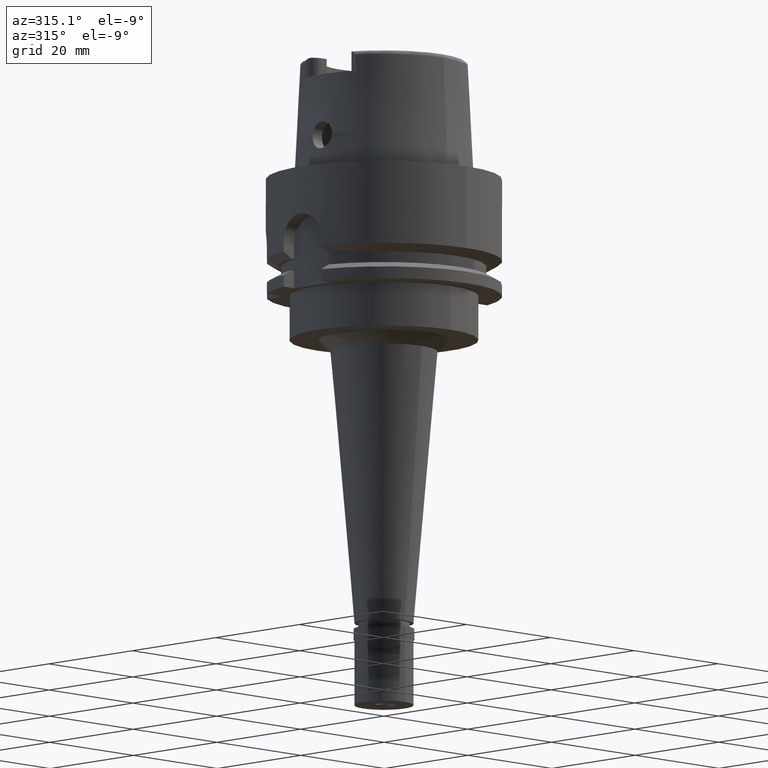
[diagram: clean part render]
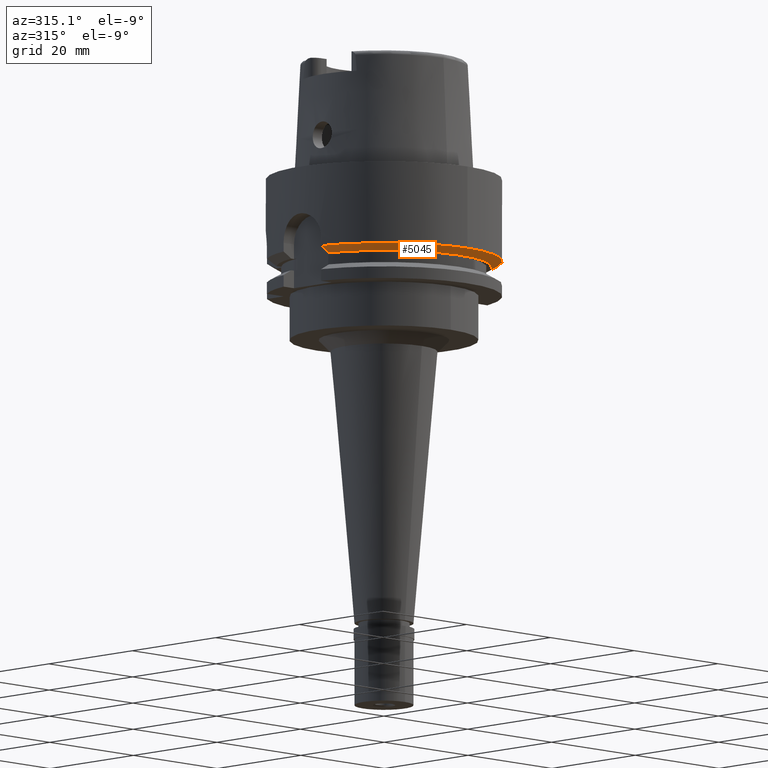
[diagram: same view with one face highlighted and labeled with its STEP entity id]
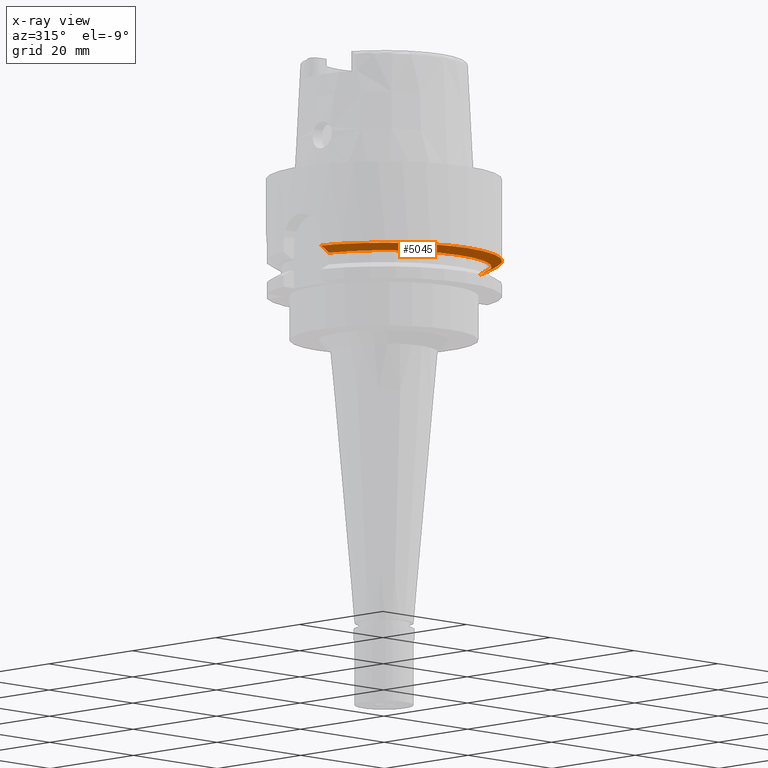
[diagram: x-ray of the same camera — body ghosted, the highlighted face saturated]
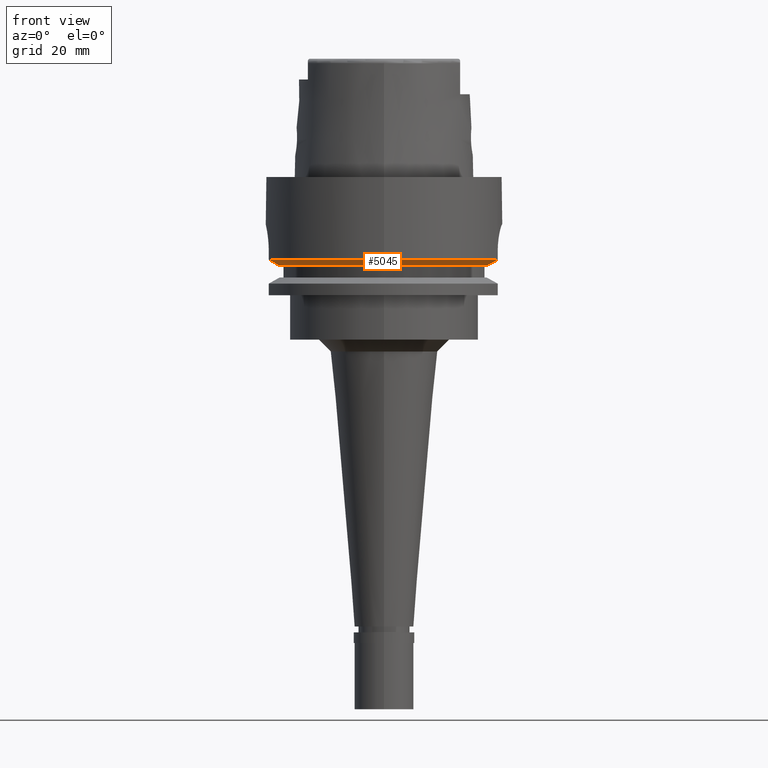
[diagram: same view with one face highlighted and labeled with its STEP entity id]
A machine part, auxiliary view. The second image highlights one B-rep face of the part: STEP entity #5045.
The next image is the same camera in x-ray: the body ghosted, the highlighted face saturated — about 0% of this face is hidden behind the body in this view.
A second angle (front view) of the same face is appended — the face is thin or edge-on in the first view.
In plain terms, the highlighted conical surface has half-angle 60 deg.
Its self-contained STEP definition (entity closure, byte-faithful):
#108 = AXIS2_PLACEMENT_3D ( 'NONE', #1301, #857, #3736 ) ;
#254 = CARTESIAN_POINT ( 'NONE',  ( -17.66798451012000370, -4.500000000000000000, -15.00000000000000000 ) ) ;
#461 = CARTESIAN_POINT ( 'NONE',  ( 0.0000000000000000000, 1.047199923064999921E-14, -14.48963702891999894 ) ) ;
#489 = DIRECTION ( 'NONE',  ( 0.0000000000000000000, 1.000000000000000000, 0.0000000000000000000 ) ) ;
#560 = EDGE_CURVE ( 'NONE', #2013, #2995, #5071, .T. ) ;
#715 = CARTESIAN_POINT ( 'NONE',  ( 17.38268324078999783, -5.500000000000000000, -15.00000000000000000 ) ) ;
#717 = VERTEX_POINT ( 'NONE', #3813 ) ;
#845 = VERTEX_POINT ( 'NONE', #1941 ) ;
#857 = DIRECTION ( 'NONE',  ( 0.0000000000000000000, 0.0000000000000000000, 1.000000000000000000 ) ) ;
#913 = DIRECTION ( 'NONE',  ( 0.0000000000000000000, 0.0000000000000000000, 1.000000000000000000 ) ) ;
#920 = EDGE_CURVE ( 'NONE', #845, #717, #2848, .T. ) ;
#1070 = CARTESIAN_POINT ( 'NONE',  ( 19.22888452303000051, -5.499999999998999911, -13.97927405783999966 ) ) ;
#1184 = CARTESIAN_POINT ( 'NONE',  ( -19.28530198039999988, -4.499999999998999911, -14.09283712879000028 ) ) ;
#1259 = DIRECTION ( 'NONE',  ( -0.9743587634952779464, -0.2249999999998949785, 0.0000000000000000000 ) ) ;
#1296 = B_SPLINE_CURVE_WITH_KNOTS ( 'NONE', 3,
 ( #715, #3171, #4404, #2341 ),
 .UNSPECIFIED., .F., .F.,
 ( 4, 4 ),
 ( 0.0000000000000000000, 1.000000000000000000 ),
 .UNSPECIFIED. ) ;
#1300 = FACE_OUTER_BOUND ( 'NONE', #2399, .T. ) ;
#1301 = CARTESIAN_POINT ( 'NONE',  ( 0.0000000000000000000, 1.047199923064999921E-14, -13.97927405783999966 ) ) ;
#1539 = DIRECTION ( 'NONE',  ( 0.0000000000000000000, 0.0000000000000000000, 1.000000000000000000 ) ) ;
#1610 = CONICAL_SURFACE ( 'NONE', #3660, 19.11602540378000015, 1.047197551196400456 ) ;
#1880 = ORIENTED_EDGE ( 'NONE', *, *, #2052, .F. ) ;
#1896 = CARTESIAN_POINT ( 'NONE',  ( -18.27500004451999871, -4.500000000000000000, -14.66013283402000056 ) ) ;
#1941 = CARTESIAN_POINT ( 'NONE',  ( -17.66798451012000370, -4.500000000000000000, -15.00000000000000000 ) ) ;
#2013 = VERTEX_POINT ( 'NONE', #2359 ) ;
#2052 = EDGE_CURVE ( 'NONE', #845, #2437, #4754, .T. ) ;
#2341 = CARTESIAN_POINT ( 'NONE',  ( 19.22888452303000051, -5.499999999998999911, -13.97927405783999966 ) ) ;
#2359 = CARTESIAN_POINT ( 'NONE',  ( 0.0000000000000000000, -20.00000000000000000, -13.97927405783999966 ) ) ;
#2399 = EDGE_LOOP ( 'NONE', ( #1880, #2942, #4570, #2918, #3260 ) ) ;
#2433 = AXIS2_PLACEMENT_3D ( 'NONE', #5206, #1539, #3170 ) ;
#2437 = VERTEX_POINT ( 'NONE', #4190 ) ;
#2675 = EDGE_CURVE ( 'NONE', #717, #2995, #1296, .T. ) ;
#2848 = CIRCLE ( 'NONE', #2433, 18.23205080757000118 ) ;
#2882 = AXIS2_PLACEMENT_3D ( 'NONE', #4920, #913, #1259 ) ;
#2918 = ORIENTED_EDGE ( 'NONE', *, *, #560, .F. ) ;
#2942 = ORIENTED_EDGE ( 'NONE', *, *, #920, .T. ) ;
#2995 = VERTEX_POINT ( 'NONE', #1070 ) ;
#3170 = DIRECTION ( 'NONE',  ( 0.0000000000000000000, -1.000000000000000000, 0.0000000000000000000 ) ) ;
#3171 = CARTESIAN_POINT ( 'NONE',  ( 17.97044157072066994, -5.500000299603181375, -14.67646630079451242 ) ) ;
#3260 = ORIENTED_EDGE ( 'NONE', *, *, #3849, .F. ) ;
#3472 = CARTESIAN_POINT ( 'NONE',  ( -17.87038807254999995, -4.500000000000000000, -14.88675761378000040 ) ) ;
#3660 = AXIS2_PLACEMENT_3D ( 'NONE', #461, #4188, #489 ) ;
#3736 = DIRECTION ( 'NONE',  ( 0.0000000000000000000, -1.000000000000000000, 0.0000000000000000000 ) ) ;
#3813 = CARTESIAN_POINT ( 'NONE',  ( 17.38268324078999783, -5.500000000000000000, -15.00000000000000000 ) ) ;
#3849 = EDGE_CURVE ( 'NONE', #2437, #2013, #4095, .T. ) ;
#4095 = CIRCLE ( 'NONE', #2882, 20.00000000000000355 ) ;
#4188 = DIRECTION ( 'NONE',  ( 0.0000000000000000000, 0.0000000000000000000, 1.000000000000000000 ) ) ;
#4190 = CARTESIAN_POINT ( 'NONE',  ( -19.48717526991000071, -4.499999999998999911, -13.97927405783999966 ) ) ;
#4404 = CARTESIAN_POINT ( 'NONE',  ( 18.58583611457222418, -5.500000965018773336, -14.33622369633685167 ) ) ;
#4570 = ORIENTED_EDGE ( 'NONE', *, *, #2675, .T. ) ;
#4754 = B_SPLINE_CURVE_WITH_KNOTS ( 'NONE', 3,
 ( #254, #3472, #1896, #5161, #1184, #4841 ),
 .UNSPECIFIED., .F., .F.,
 ( 4, 1, 1, 4 ),
 ( 0.0000000000000000000, 0.3333333333333000081, 0.6666666666667000474, 1.000000000000000000 ),
 .UNSPECIFIED. ) ;
#4841 = CARTESIAN_POINT ( 'NONE',  ( -19.48717526991000071, -4.499999999998999911, -13.97927405783999966 ) ) ;
#4920 = CARTESIAN_POINT ( 'NONE',  ( 0.0000000000000000000, 1.047199923064999921E-14, -13.97927405783999966 ) ) ;
#5045 = ADVANCED_FACE ( 'NONE', ( #1300 ), #1610, .T. ) ;
#5071 = CIRCLE ( 'NONE', #108, 20.00000000000000000 ) ;
#5161 = CARTESIAN_POINT ( 'NONE',  ( -18.88138594763999834, -4.500000000000000000, -14.31986964318999966 ) ) ;
#5206 = CARTESIAN_POINT ( 'NONE',  ( 0.0000000000000000000, 1.047199923064999921E-14, -15.00000000000000000 ) ) ;